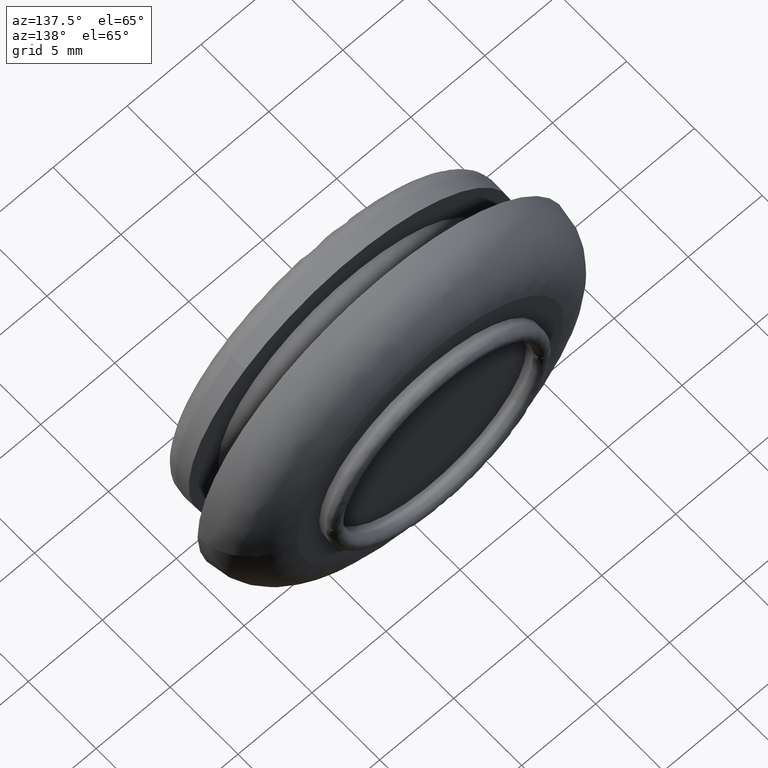
[diagram: clean part render]
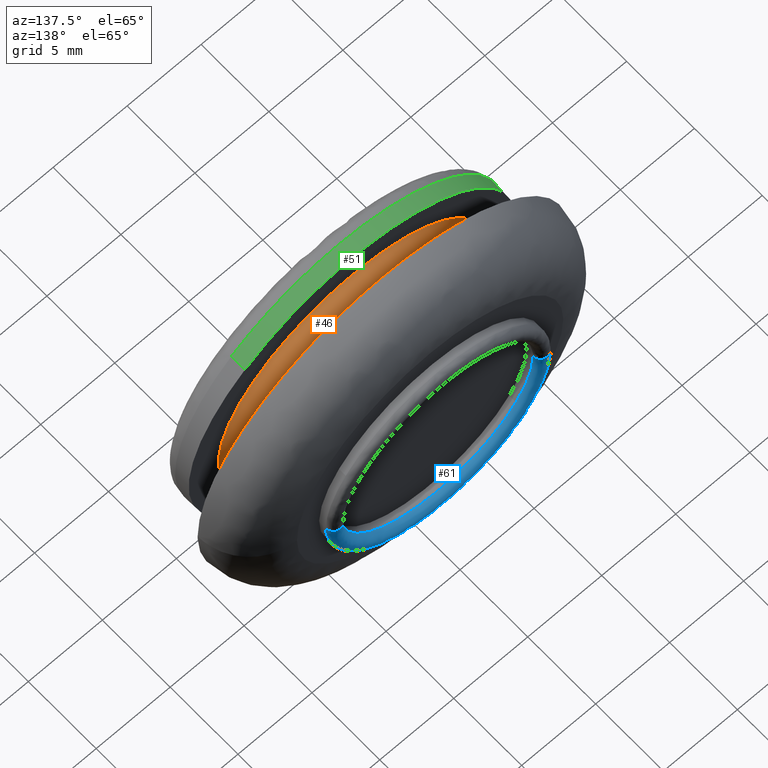
[diagram: same view with three faces highlighted in distinct colors, each labeled with its STEP entity id]
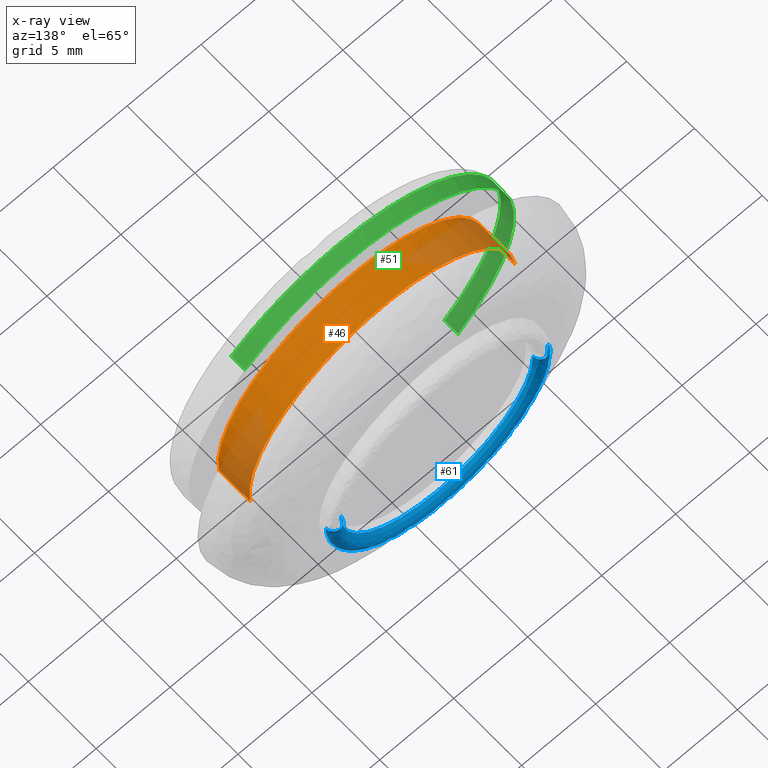
[diagram: x-ray of the same camera — body ghosted, the three highlighted faces saturated]
A machine part, auxiliary view with three faces highlighted in distinct colors.
The next image is the same camera in x-ray (body ghosted, the three faces saturated) — at least one of them is partly hidden behind the body in this view.
Their STEP definitions:

[orange] entity #46 — the highlighted cylindrical surface (partial cylindrical patch) has radius 9 mm, axis along (0, 1, 0).
#46=ADVANCED_FACE('',(#127),#126,.T.);
#126=CYLINDRICAL_SURFACE('',#323,8.99999800000E+000);
#127=FACE_OUTER_BOUND('',#324,.T.);
#320=CARTESIAN_POINT('',(3.22088746931E-016,4.35750000000E+000,2.00000000258E-006));
#321=DIRECTION('',(1.71820705080E-016,1.00000000000E+000,1.02746750398E-015));
#322=DIRECTION('',(-9.93009526364E-001,4.93432565041E-017,1.18034234657E-001));
#323=AXIS2_PLACEMENT_3D('',#320,#321,#322);
#324=EDGE_LOOP('',(#577,#578,#579,#580));
#577=ORIENTED_EDGE('',*,*,#693,.T.);
#578=ORIENTED_EDGE('',*,*,#717,.F.);
#579=ORIENTED_EDGE('',*,*,#715,.F.);
#580=ORIENTED_EDGE('',*,*,#718,.T.);
#693=EDGE_CURVE('',#806,#798,#807,.T.);
#715=EDGE_CURVE('',#953,#960,#961,.T.);
#717=EDGE_CURVE('',#960,#798,#973,.T.);
#718=EDGE_CURVE('',#953,#806,#979,.T.);
#798=VERTEX_POINT('',#1260);
#806=VERTEX_POINT('',#1266);
#807=CIRCLE('',#1270,8.99999800000E+000);
#953=VERTEX_POINT('',#1371);
#960=VERTEX_POINT('',#1376);
#961=CIRCLE('',#1380,8.99999800000E+000);
#973=(BOUNDED_CURVE() B_SPLINE_CURVE(1,(#1385,#1386),.UNSPECIFIED.,.F.,.F.) B_SPLINE_CURVE_WITH_KNOTS((2,2),(8.33333233997E-002,9.16666663280E-001),.UNSPECIFIED.) CURVE() GEOMETRIC_REPRESENTATION_ITEM() RATIONAL_B_SPLINE_CURVE((1.00000000000E+000,1.00000000000E+000)) REPRESENTATION_ITEM('') );
#979=(BOUNDED_CURVE() B_SPLINE_CURVE(1,(#1387,#1388),.UNSPECIFIED.,.F.,.F.) B_SPLINE_CURVE_WITH_KNOTS((2,2),(8.33333333333E-002,9.16666666666E-001),.UNSPECIFIED.) CURVE() GEOMETRIC_REPRESENTATION_ITEM() RATIONAL_B_SPLINE_CURVE((7.50000000000E-001,7.50000000000E-001)) REPRESENTATION_ITEM('') );
#1260=CARTESIAN_POINT('',(-8.93708375126E+000,4.30000000000E+000,1.06230987579E+000));
#1266=CARTESIAN_POINT('',(8.93690001345E+000,4.30000000000E+000,-1.06385050368E+000));
#1267=CARTESIAN_POINT('',(5.75539615966E-013,4.30000000000E+000,2.00000126815E-006));
#1268=DIRECTION('',(-1.25191885518E-014,-1.00000000000E+000,-8.44208256626E-014));
#1269=DIRECTION('',(-6.42402797624E-014,8.44208256626E-014,-1.00000000000E+000));
#1270=AXIS2_PLACEMENT_3D('',#1267,#1268,#1269);
#1371=CARTESIAN_POINT('',(8.93690001344E+000,2.00000000000E+000,-1.06385050368E+000));
#1376=CARTESIAN_POINT('',(-8.93708375126E+000,2.00000000000E+000,1.06230987579E+000));
#1377=CARTESIAN_POINT('',(-7.53175299906E-013,2.00000000000E+000,2.00000486572E-006));
#1378=DIRECTION('',(0.00000000000E+000,-1.00000000000E+000,0.00000000000E+000));
#1379=DIRECTION('',(8.32913798727E-014,0.00000000000E+000,-1.00000000000E+000));
#1380=AXIS2_PLACEMENT_3D('',#1377,#1378,#1379);
#1385=CARTESIAN_POINT('',(-8.93708375125E+000,1.99999997258E+000,1.06230987584E+000));
#1386=CARTESIAN_POINT('',(-8.93708375125E+000,4.29999999065E+000,1.06230987584E+000));
#1387=CARTESIAN_POINT('',(8.93708375125E+000,2.00000000000E+000,-1.06230587584E+000));
#1388=CARTESIAN_POINT('',(8.93708375125E+000,4.30000000000E+000,-1.06230587584E+000));

[blue] entity #61 — the highlighted face is a freeform B-spline surface patch.
#61=ADVANCED_FACE('',(#277),#276,.T.);
#276=( BOUNDED_SURFACE() B_SPLINE_SURFACE( 2,2,((#510,#511,#512,#513,#514),(#515,#516,#517,#518,#519),(#520,#521,#522,#523,#524),(#525,#526,#527,#528,#529),(#530,#531,#532,#533,#534),(#535,#536,#537,#538,#539),(#540,#541,#542,#543,#544)), .UNSPECIFIED.,.F.,.F.,.F.) B_SPLINE_SURFACE_WITH_KNOTS((3,2,2,3),(3,2,3),(-3.14159506736E+000,-2.09439590698E+000,-1.04719674661E+000,2.41377406951E-006),(3.14159265359E+000,4.71238898038E+000,6.28318530718E+000), .UNSPECIFIED. ) GEOMETRIC_REPRESENTATION_ITEM() RATIONAL_B_SPLINE_SURFACE(((1.00000000000E+000,7.07106781187E-001,1.00000000000E+000,7.07106781187E-001,1.00000000000E+000),(8.66025001488E-001,6.12372151230E-001,8.66025001488E-001,6.12372151230E-001,8.66025001488E-001),(1.00000000000E+000,7.07106781187E-001,1.00000000000E+000,7.07106781187E-001,1.00000000000E+000),(8.66025001489E-001,6.12372151230E-001,8.66025001489E-001,6.12372151230E-001,8.66025001489E-001),(1.00000000000E+000,7.07106781187E-001,1.00000000000E+000,7.07106781187E-001,1.00000000000E+000),(8.66025001488E-001,6.12372151230E-001,8.66025001488E-001,6.12372151230E-001,8.66025001488E-001),(1.00000000000E+000,7.07106781187E-001,1.00000000000E+000,7.07106781187E-001,1.00000000000E+000))) REPRESENTATION_ITEM('') SURFACE() );
#277=FACE_OUTER_BOUND('',#545,.T.);
#510=CARTESIAN_POINT('',(6.49999800000E+000,8.29999879312E+000,2.00000011378E-006));
#511=CARTESIAN_POINT('',(6.49999800000E+000,8.29999879312E+000,-6.49999600000E+000));
#512=CARTESIAN_POINT('',(-1.20295896933E-012,8.29999879312E+000,-6.49999600000E+000));
#513=CARTESIAN_POINT('',(-6.49999800000E+000,8.29999879311E+000,-6.49999600000E+000));
#514=CARTESIAN_POINT('',(-6.49999800000E+000,8.29999879311E+000,2.00000011537E-006));
#515=CARTESIAN_POINT('',(6.49999730320E+000,8.58867446411E+000,2.00000011496E-006));
#516=CARTESIAN_POINT('',(6.49999730320E+000,8.58867446411E+000,-6.49999530320E+000));
#517=CARTESIAN_POINT('',(-1.29701464271E-012,8.58867446410E+000,-6.49999530320E+000));
#518=CARTESIAN_POINT('',(-6.49999730320E+000,8.58867446410E+000,-6.49999530320E+000));
#519=CARTESIAN_POINT('',(-6.49999730320E+000,8.58867446410E+000,2.00000011656E-006));
#520=CARTESIAN_POINT('',(6.74999765160E+000,8.73301250075E+000,2.00000011552E-006));
#521=CARTESIAN_POINT('',(6.74999765160E+000,8.73301250075E+000,-6.74999565160E+000));
#522=CARTESIAN_POINT('',(-1.34407316031E-012,8.73301250075E+000,-6.74999565160E+000));
#523=CARTESIAN_POINT('',(-6.74999765160E+000,8.73301250074E+000,-6.74999565160E+000));
#524=CARTESIAN_POINT('',(-6.74999765160E+000,8.73301250074E+000,2.00000011718E-006));
#525=CARTESIAN_POINT('',(6.99999800000E+000,8.87735053739E+000,2.00000011608E-006));
#526=CARTESIAN_POINT('',(6.99999800000E+000,8.87735053739E+000,-6.99999600000E+000));
#527=CARTESIAN_POINT('',(-1.39113167833E-012,8.87735053739E+000,-6.99999600000E+000));
#528=CARTESIAN_POINT('',(-6.99999800000E+000,8.87735053739E+000,-6.99999600000E+000));
#529=CARTESIAN_POINT('',(-6.99999800000E+000,8.87735053739E+000,2.00000011780E-006));
#530=CARTESIAN_POINT('',(7.24999834840E+000,8.73301250075E+000,2.00000011546E-006));
#531=CARTESIAN_POINT('',(7.24999834840E+000,8.73301250075E+000,-7.24999634840E+000));
#532=CARTESIAN_POINT('',(-1.34413439105E-012,8.73301250075E+000,-7.24999634840E+000));
#533=CARTESIAN_POINT('',(-7.24999834840E+000,8.73301250074E+000,-7.24999634840E+000));
#534=CARTESIAN_POINT('',(-7.24999834840E+000,8.73301250074E+000,2.00000011724E-006));
#535=CARTESIAN_POINT('',(7.49999869679E+000,8.58867446411E+000,2.00000011484E-006));
#536=CARTESIAN_POINT('',(7.49999869679E+000,8.58867446411E+000,-7.49999669680E+000));
#537=CARTESIAN_POINT('',(-1.29713710377E-012,8.58867446410E+000,-7.49999669680E+000));
#538=CARTESIAN_POINT('',(-7.49999869680E+000,8.58867446410E+000,-7.49999669680E+000));
#539=CARTESIAN_POINT('',(-7.49999869680E+000,8.58867446410E+000,2.00000011668E-006));
#540=CARTESIAN_POINT('',(7.49999800000E+000,8.29999879312E+000,2.00000011366E-006));
#541=CARTESIAN_POINT('',(7.49999800000E+000,8.29999879312E+000,-7.49999600000E+000));
#542=CARTESIAN_POINT('',(-1.20308142997E-012,8.29999879312E+000,-7.49999600000E+000));
#543=CARTESIAN_POINT('',(-7.49999800000E+000,8.29999879311E+000,-7.49999600000E+000));
#544=CARTESIAN_POINT('',(-7.49999800000E+000,8.29999879311E+000,2.00000011550E-006));
#545=EDGE_LOOP('',(#677,#678,#679,#680,#681,#682,#683,#684,#685));
#677=ORIENTED_EDGE('',*,*,#750,.F.);
#678=ORIENTED_EDGE('',*,*,#749,.F.);
#679=ORIENTED_EDGE('',*,*,#748,.F.);
#680=ORIENTED_EDGE('',*,*,#745,.F.);
#681=ORIENTED_EDGE('',*,*,#754,.F.);
#682=ORIENTED_EDGE('',*,*,#732,.T.);
#683=ORIENTED_EDGE('',*,*,#740,.T.);
#684=ORIENTED_EDGE('',*,*,#739,.T.);
#685=ORIENTED_EDGE('',*,*,#755,.T.);
#732=EDGE_CURVE('',#1070,#1063,#1071,.T.);
#739=EDGE_CURVE('',#1118,#1111,#1119,.T.);
#740=EDGE_CURVE('',#1063,#1118,#1125,.T.);
#745=EDGE_CURVE('',#1153,#1160,#1161,.T.);
#748=EDGE_CURVE('',#1160,#1179,#1180,.T.);
#749=EDGE_CURVE('',#1179,#1186,#1187,.T.);
#750=EDGE_CURVE('',#1186,#1193,#1194,.T.);
#754=EDGE_CURVE('',#1070,#1153,#1218,.T.);
#755=EDGE_CURVE('',#1111,#1193,#1224,.T.);
#1063=VERTEX_POINT('',#1435);
#1070=VERTEX_POINT('',#1438);
#1071=CIRCLE('',#1442,6.49999800000E+000);
#1111=VERTEX_POINT('',#1464);
#1118=VERTEX_POINT('',#1468);
#1119=CIRCLE('',#1472,6.49999739508E+000);
#1125=CIRCLE('',#1476,6.49999800000E+000);
#1153=VERTEX_POINT('',#1493);
#1160=VERTEX_POINT('',#1498);
#1161=CIRCLE('',#1502,7.49999800000E+000);
#1179=VERTEX_POINT('',#1507);
#1180=CIRCLE('',#1511,7.49999800000E+000);
#1186=VERTEX_POINT('',#1512);
#1187=CIRCLE('',#1516,7.49999800000E+000);
#1193=VERTEX_POINT('',#1517);
#1194=CIRCLE('',#1521,7.49999800001E+000);
#1218=(BOUNDED_CURVE() B_SPLINE_CURVE(2,(#1536,#1537,#1538,#1539,#1540,#1541,#1542),.UNSPECIFIED.,.F.,.F.) B_SPLINE_CURVE_WITH_KNOTS((3,2,2,3),(-3.14159248742E+000,-2.09439590698E+000,-1.04719674661E+000,-1.66168200967E-007),.UNSPECIFIED.) CURVE() GEOMETRIC_REPRESENTATION_ITEM() RATIONAL_B_SPLINE_CURVE((1.00000000000E+000,8.66025001488E-001,1.00000000000E+000,8.66025001489E-001,1.00000000000E+000,8.66025001488E-001,1.00000000000E+000)) REPRESENTATION_ITEM('') );
#1224=(BOUNDED_CURVE() B_SPLINE_CURVE(2,(#1543,#1544,#1545,#1546,#1547,#1548,#1549),.UNSPECIFIED.,.F.,.F.) B_SPLINE_CURVE_WITH_KNOTS((3,2,2,3),(-3.14159506736E+000,-2.09439590698E+000,-1.04719674661E+000,2.41377406951E-006),.UNSPECIFIED.) CURVE() GEOMETRIC_REPRESENTATION_ITEM() RATIONAL_B_SPLINE_CURVE((1.00000000000E+000,8.66025001488E-001,1.00000000000E+000,8.66025001489E-001,1.00000000000E+000,8.66025001488E-001,1.00000000000E+000)) REPRESENTATION_ITEM('') );
#1435=CARTESIAN_POINT('',(-5.33689589987E+000,8.29999999968E+000,-3.71045836954E+000));
#1438=CARTESIAN_POINT('',(-6.49999800000E+000,8.29999999998E+000,1.99999786511E-006));
#1439=CARTESIAN_POINT('',(0.00000000000E+000,8.30000000003E+000,2.00000000028E-006));
#1440=DIRECTION('',(7.47367671973E-012,-1.00000000000E+000,8.27771009924E-011));
#1441=DIRECTION('',(9.97565673840E-001,1.68316694465E-012,-6.97332515773E-002));
#1442=AXIS2_PLACEMENT_3D('',#1439,#1440,#1441);
#1464=CARTESIAN_POINT('',(6.49999771402E+000,8.30000000000E+000,8.70670558266E-006));
#1468=CARTESIAN_POINT('',(0.00000000000E+000,8.30000000000E+000,-6.49999600000E+000));
#1469=CARTESIAN_POINT('',(3.18937180221E-007,8.30000000002E+000,2.60095866356E-006));
#1470=DIRECTION('',(-3.06599368376E-012,-1.00000000000E+000,9.32962891532E-015));
#1471=DIRECTION('',(-8.21061244530E-001,2.51204286330E-012,-5.70840111354E-001));
#1472=AXIS2_PLACEMENT_3D('',#1469,#1470,#1471);
#1473=CARTESIAN_POINT('',(0.00000000000E+000,8.30000000003E+000,2.00000000028E-006));
#1474=DIRECTION('',(7.47367671973E-012,-1.00000000000E+000,8.27771009924E-011));
#1475=DIRECTION('',(9.97565673840E-001,1.68316694465E-012,-6.97332515773E-002));
#1476=AXIS2_PLACEMENT_3D('',#1473,#1474,#1475);
#1493=CARTESIAN_POINT('',(-7.49999800000E+000,8.29999999992E+000,1.99997886821E-006));
#1498=CARTESIAN_POINT('',(-6.15795382802E+000,8.29999999870E+000,-4.28130325096E+000));
#1499=CARTESIAN_POINT('',(-1.77635683940E-015,8.30000000012E+000,1.99999999850E-006));
#1500=DIRECTION('',(2.64874933268E-011,-1.00000000000E+000,2.93358212488E-010));
#1501=DIRECTION('',(9.97565673840E-001,5.96619209558E-012,-6.97332515760E-002));
#1502=AXIS2_PLACEMENT_3D('',#1499,#1500,#1501);
#1507=CARTESIAN_POINT('',(0.00000000000E+000,8.30000000000E+000,-7.49999600000E+000));
#1508=CARTESIAN_POINT('',(-1.77635683940E-015,8.30000000012E+000,1.99999999850E-006));
#1509=DIRECTION('',(2.64874933268E-011,-1.00000000000E+000,2.93358212488E-010));
#1510=DIRECTION('',(9.97565673840E-001,5.96619209558E-012,-6.97332515760E-002));
#1511=AXIS2_PLACEMENT_3D('',#1508,#1509,#1510);
#1512=CARTESIAN_POINT('',(7.47687833321E+000,8.30000000000E+000,-5.88436943584E-001));
#1513=CARTESIAN_POINT('',(2.18935980456E-013,8.30000000000E+000,1.99999852768E-006));
#1514=DIRECTION('',(-1.15825979985E-029,-1.00000000000E+000,3.45797556949E-014));
#1515=DIRECTION('',(2.91914718452E-014,3.45797556949E-014,1.00000000000E+000));
#1516=AXIS2_PLACEMENT_3D('',#1513,#1514,#1515);
#1517=CARTESIAN_POINT('',(7.49999800000E+000,8.30000000000E+000,1.11181279352E-005));
#1518=CARTESIAN_POINT('',(-3.18012283174E-012,8.30000000008E+000,1.99999501849E-006));
#1519=DIRECTION('',(-1.03308068940E-011,-1.00000000000E+000,4.77163855499E-014));
#1520=DIRECTION('',(-8.21061280730E-001,8.45498711505E-012,-5.70840059286E-001));
#1521=AXIS2_PLACEMENT_3D('',#1518,#1519,#1520);
#1536=CARTESIAN_POINT('',(-6.49999800000E+000,8.29999879311E+000,2.00000011537E-006));
#1537=CARTESIAN_POINT('',(-6.49999730320E+000,8.58867446410E+000,2.00000011656E-006));
#1538=CARTESIAN_POINT('',(-6.74999765160E+000,8.73301250074E+000,2.00000011718E-006));
#1539=CARTESIAN_POINT('',(-6.99999800000E+000,8.87735053739E+000,2.00000011780E-006));
#1540=CARTESIAN_POINT('',(-7.24999834840E+000,8.73301250074E+000,2.00000011724E-006));
#1541=CARTESIAN_POINT('',(-7.49999869680E+000,8.58867446410E+000,2.00000011668E-006));
#1542=CARTESIAN_POINT('',(-7.49999800000E+000,8.29999879311E+000,2.00000011550E-006));
#1543=CARTESIAN_POINT('',(6.49999800000E+000,8.29999879312E+000,2.00000011378E-006));
#1544=CARTESIAN_POINT('',(6.49999730320E+000,8.58867446411E+000,2.00000011496E-006));
#1545=CARTESIAN_POINT('',(6.74999765160E+000,8.73301250075E+000,2.00000011552E-006));
#1546=CARTESIAN_POINT('',(6.99999800000E+000,8.87735053739E+000,2.00000011608E-006));
#1547=CARTESIAN_POINT('',(7.24999834840E+000,8.73301250075E+000,2.00000011546E-006));
#1548=CARTESIAN_POINT('',(7.49999869679E+000,8.58867446411E+000,2.00000011484E-006));
#1549=CARTESIAN_POINT('',(7.49999800000E+000,8.29999879312E+000,2.00000011366E-006));

[green] entity #51 — the highlighted cylindrical surface (partial cylindrical patch) has radius 11 mm, axis along (-0, 1, 0).
#51=ADVANCED_FACE('',(#177),#176,.T.);
#176=CYLINDRICAL_SURFACE('',#390,1.09999980000E+001);
#177=FACE_OUTER_BOUND('',#391,.T.);
#387=CARTESIAN_POINT('',(-1.61467236854E-017,2.02500000000E+000,2.00000000181E-006));
#388=DIRECTION('',(-3.07373681069E-017,1.00000000000E+000,2.65970090864E-017));
#389=DIRECTION('',(6.54339657003E-001,-3.08148791102E-033,7.56200775769E-001));
#390=AXIS2_PLACEMENT_3D('',#387,#388,#389);
#391=EDGE_LOOP('',(#605,#606,#607,#608,#609,#610,#611));
#605=ORIENTED_EDGE('',*,*,#725,.F.);
#606=ORIENTED_EDGE('',*,*,#724,.F.);
#607=ORIENTED_EDGE('',*,*,#722,.F.);
#608=ORIENTED_EDGE('',*,*,#727,.T.);
#609=ORIENTED_EDGE('',*,*,#711,.T.);
#610=ORIENTED_EDGE('',*,*,#713,.T.);
#611=ORIENTED_EDGE('',*,*,#728,.F.);
#711=EDGE_CURVE('',#931,#932,#933,.T.);
#713=EDGE_CURVE('',#932,#939,#946,.T.);
#722=EDGE_CURVE('',#999,#1006,#1007,.T.);
#724=EDGE_CURVE('',#1006,#1019,#1020,.T.);
#725=EDGE_CURVE('',#1019,#1026,#1027,.T.);
#727=EDGE_CURVE('',#999,#931,#1039,.T.);
#728=EDGE_CURVE('',#1026,#939,#1045,.T.);
#931=VERTEX_POINT('',#1355);
#932=VERTEX_POINT('',#1356);
#933=CIRCLE('',#1360,1.09999986187E+001);
#939=VERTEX_POINT('',#1361);
#946=CIRCLE('',#1369,1.09999986187E+001);
#999=VERTEX_POINT('',#1398);
#1006=VERTEX_POINT('',#1403);
#1007=CIRCLE('',#1407,1.09999980000E+001);
#1019=VERTEX_POINT('',#1413);
#1020=CIRCLE('',#1417,1.09999987620E+001);
#1026=VERTEX_POINT('',#1418);
#1027=CIRCLE('',#1422,1.09999975505E+001);
#1039=(BOUNDED_CURVE() B_SPLINE_CURVE(1,(#1427,#1428),.UNSPECIFIED.,.F.,.F.) B_SPLINE_CURVE_WITH_KNOTS((2,2),(8.33333730703E-002,9.16666640476E-001),.UNSPECIFIED.) CURVE() GEOMETRIC_REPRESENTATION_ITEM() RATIONAL_B_SPLINE_CURVE((1.00000000000E+000,1.00000000000E+000)) REPRESENTATION_ITEM('') );
#1045=(BOUNDED_CURVE() B_SPLINE_CURVE(1,(#1429,#1430),.UNSPECIFIED.,.F.,.F.) B_SPLINE_CURVE_WITH_KNOTS((2,2),(8.33333334255E-002,9.16666666667E-001),.UNSPECIFIED.) CURVE() GEOMETRIC_REPRESENTATION_ITEM() RATIONAL_B_SPLINE_CURVE((7.50000000000E-001,7.50000000000E-001)) REPRESENTATION_ITEM('') );
#1355=CARTESIAN_POINT('',(7.19773572801E+000,2.00000000000E+000,8.31820995676E+000));
#1356=CARTESIAN_POINT('',(-7.43149111783E+000,2.00000000000E+000,8.11005230722E+000));
#1357=CARTESIAN_POINT('',(2.30514909383E-007,2.00000000000E+000,2.61868548890E-006));
#1358=DIRECTION('',(-1.42998781703E-017,-1.00000000000E+000,5.99178555146E-015));
#1359=DIRECTION('',(-6.75590207414E-001,4.42726855289E-015,7.37277336995E-001));
#1360=AXIS2_PLACEMENT_3D('',#1357,#1358,#1359);
#1361=CARTESIAN_POINT('',(-7.19748786925E+000,2.00000000000E+000,-8.31841878594E+000));
#1366=CARTESIAN_POINT('',(2.30514909383E-007,2.00000000000E+000,2.61868548890E-006));
#1367=DIRECTION('',(-1.42998781703E-017,-1.00000000000E+000,5.99178555146E-015));
#1368=DIRECTION('',(-6.75590207414E-001,4.42726855289E-015,7.37277336995E-001));
#1369=AXIS2_PLACEMENT_3D('',#1366,#1367,#1368);
#1398=CARTESIAN_POINT('',(7.19773521458E+000,1.00000000666E+000,8.31820876473E+000));
#1403=CARTESIAN_POINT('',(0.00000000000E+000,1.00000000000E+000,1.10000000000E+001));
#1404=CARTESIAN_POINT('',(4.44089209850E-015,9.99999999816E-001,2.00000000472E-006));
#1405=DIRECTION('',(2.67339877430E-011,-1.00000000000E+000,7.99509062152E-010));
#1406=DIRECTION('',(-9.99684189283E-001,-6.63380582289E-012,2.51300954441E-002));
#1407=AXIS2_PLACEMENT_3D('',#1404,#1405,#1406);
#1413=CARTESIAN_POINT('',(-1.09965240827E+001,9.99999999889E-001,2.76432999625E-001));
#1414=CARTESIAN_POINT('',(2.96322161031E-007,9.99999999887E-001,1.23801186724E-006));
#1415=DIRECTION('',(7.64868825532E-027,-1.00000000000E+000,1.03050710885E-011));
#1416=DIRECTION('',(2.69383813074E-008,-1.03050710885E-011,-1.00000000000E+000));
#1417=AXIS2_PLACEMENT_3D('',#1414,#1415,#1416);
#1418=CARTESIAN_POINT('',(-7.19773455938E+000,1.00000000000E+000,-8.31820533168E+000));
#1419=CARTESIAN_POINT('',(-4.54675257444E-007,9.99999999399E-001,1.79903570441E-006));
#1420=DIRECTION('',(-6.46591791298E-011,-1.00000000000E+000,-7.98555690251E-010));
#1421=DIRECTION('',(9.99684188798E-001,-4.45709629140E-011,-2.51301147404E-002));
#1422=AXIS2_PLACEMENT_3D('',#1419,#1420,#1421);
#1427=CARTESIAN_POINT('',(7.19773491835E+000,1.00000004757E+000,8.31820902106E+000));
#1428=CARTESIAN_POINT('',(7.19773491835E+000,1.99999996857E+000,8.31820902106E+000));
#1429=CARTESIAN_POINT('',(-7.19773491835E+000,1.00000000000E+000,-8.31820502106E+000));
#1430=CARTESIAN_POINT('',(-7.19773491835E+000,2.00000000000E+000,-8.31820502106E+000));